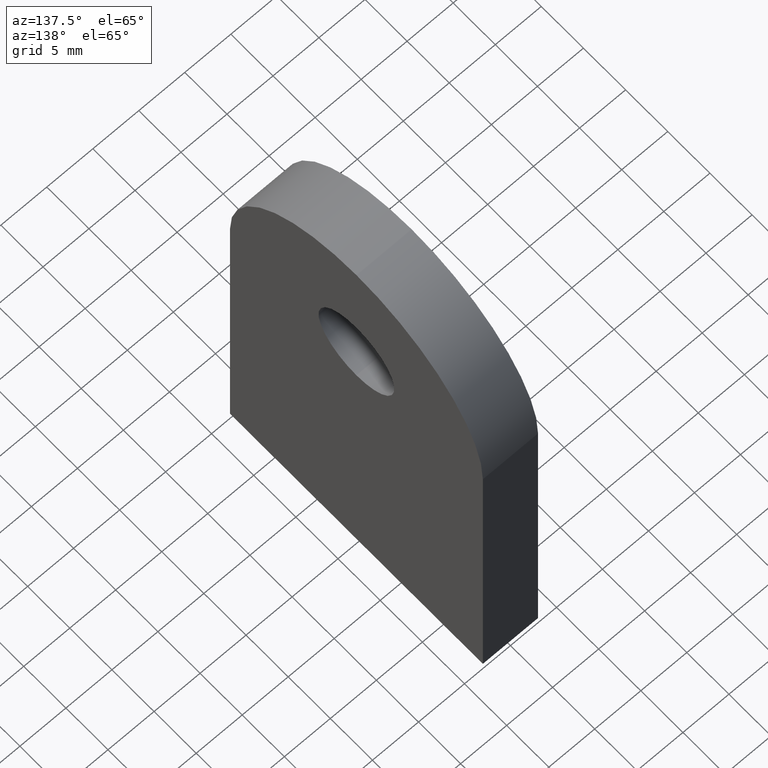
[diagram: clean part render]
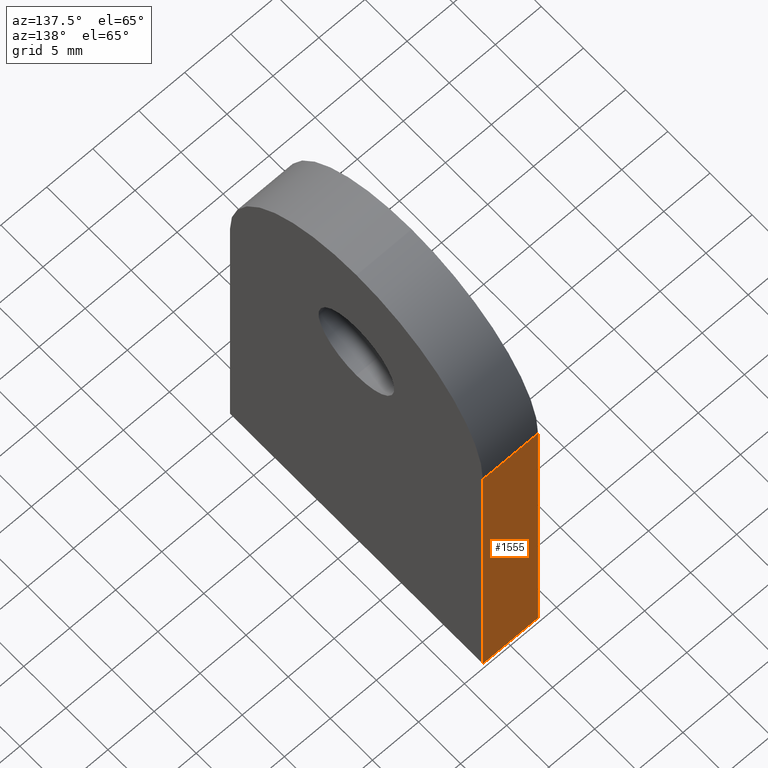
[diagram: same view with one face highlighted and labeled with its STEP entity id]
A machine part, auxiliary view. The second image highlights one B-rep face of the part: STEP entity #1555.
In plain terms, the highlighted planar face has unit normal (-0, 1, 0).
Its self-contained STEP definition (entity closure, byte-faithful):
#22 = DIRECTION ( 'NONE',  ( -0.0000000000000000000, 1.000000000000000000, 4.956352788505162800E-017 ) ) ;
#360 = CARTESIAN_POINT ( 'NONE',  ( 3.000000000000000000, 14.99999999999999800, 34.99999999999999300 ) ) ;
#621 = EDGE_CURVE ( 'NONE', #5282, #6372, #1509, .T. ) ;
#681 = DIRECTION ( 'NONE',  ( -1.000000000000000000, -0.0000000000000000000, -0.0000000000000000000 ) ) ;
#943 = DIRECTION ( 'NONE',  ( 0.0000000000000000000, 4.956352788505163400E-017, -1.000000000000000000 ) ) ;
#1270 = VECTOR ( 'NONE', #8296, 1000.000000000000000 ) ;
#1509 = LINE ( 'NONE', #5525, #8283 ) ;
#1555 = ADVANCED_FACE ( 'NONE', ( #6624 ), #10510, .T. ) ;
#1590 = CARTESIAN_POINT ( 'NONE',  ( 3.000000000000000000, 15.00000000000000000, -3.061616997868383000E-015 ) ) ;
#2262 = ORIENTED_EDGE ( 'NONE', *, *, #6178, .T. ) ;
#2929 = LINE ( 'NONE', #7547, #1270 ) ;
#3457 = ORIENTED_EDGE ( 'NONE', *, *, #621, .T. ) ;
#4381 = CARTESIAN_POINT ( 'NONE',  ( -3.000000000000000000, 14.99999999999999800, 34.99999999999999300 ) ) ;
#4391 = CARTESIAN_POINT ( 'NONE',  ( 3.000000000000000000, 14.99999999999999800, 34.99999999999999300 ) ) ;
#4553 = VERTEX_POINT ( 'NONE', #7978 ) ;
#5282 = VERTEX_POINT ( 'NONE', #9700 ) ;
#5525 = CARTESIAN_POINT ( 'NONE',  ( 3.000000000000000000, 14.99999999999999800, 34.99999999999999300 ) ) ;
#5726 = EDGE_LOOP ( 'NONE', ( #10863, #10314, #3457, #2262 ) ) ;
#6178 = EDGE_CURVE ( 'NONE', #6372, #10886, #2929, .T. ) ;
#6372 = VERTEX_POINT ( 'NONE', #1590 ) ;
#6605 = VECTOR ( 'NONE', #943, 1000.000000000000000 ) ;
#6624 = FACE_OUTER_BOUND ( 'NONE', #5726, .T. ) ;
#6871 = CARTESIAN_POINT ( 'NONE',  ( -3.000000000000000000, 15.00000000000000000, -3.061616997868383000E-015 ) ) ;
#7439 = DIRECTION ( 'NONE',  ( 0.0000000000000000000, 4.956352788505163400E-017, -1.000000000000000000 ) ) ;
#7547 = CARTESIAN_POINT ( 'NONE',  ( 3.000000000000000000, 15.00000000000000000, -3.061616997868383000E-015 ) ) ;
#7710 = LINE ( 'NONE', #360, #7830 ) ;
#7788 = EDGE_CURVE ( 'NONE', #5282, #4553, #7710, .T. ) ;
#7830 = VECTOR ( 'NONE', #681, 1000.000000000000000 ) ;
#7978 = CARTESIAN_POINT ( 'NONE',  ( -3.000000000000000000, 14.99999999999999800, 34.99999999999999300 ) ) ;
#8283 = VECTOR ( 'NONE', #7439, 1000.000000000000000 ) ;
#8296 = DIRECTION ( 'NONE',  ( -1.000000000000000000, -0.0000000000000000000, -0.0000000000000000000 ) ) ;
#8725 = EDGE_CURVE ( 'NONE', #4553, #10886, #8924, .T. ) ;
#8924 = LINE ( 'NONE', #4381, #6605 ) ;
#9192 = AXIS2_PLACEMENT_3D ( 'NONE', #4391, #22, #9587 ) ;
#9587 = DIRECTION ( 'NONE',  ( 0.0000000000000000000, -4.956352788505162800E-017, 1.000000000000000000 ) ) ;
#9700 = CARTESIAN_POINT ( 'NONE',  ( 3.000000000000000000, 14.99999999999999800, 34.99999999999999300 ) ) ;
#10314 = ORIENTED_EDGE ( 'NONE', *, *, #7788, .F. ) ;
#10510 = PLANE ( 'NONE',  #9192 ) ;
#10863 = ORIENTED_EDGE ( 'NONE', *, *, #8725, .F. ) ;
#10886 = VERTEX_POINT ( 'NONE', #6871 ) ;